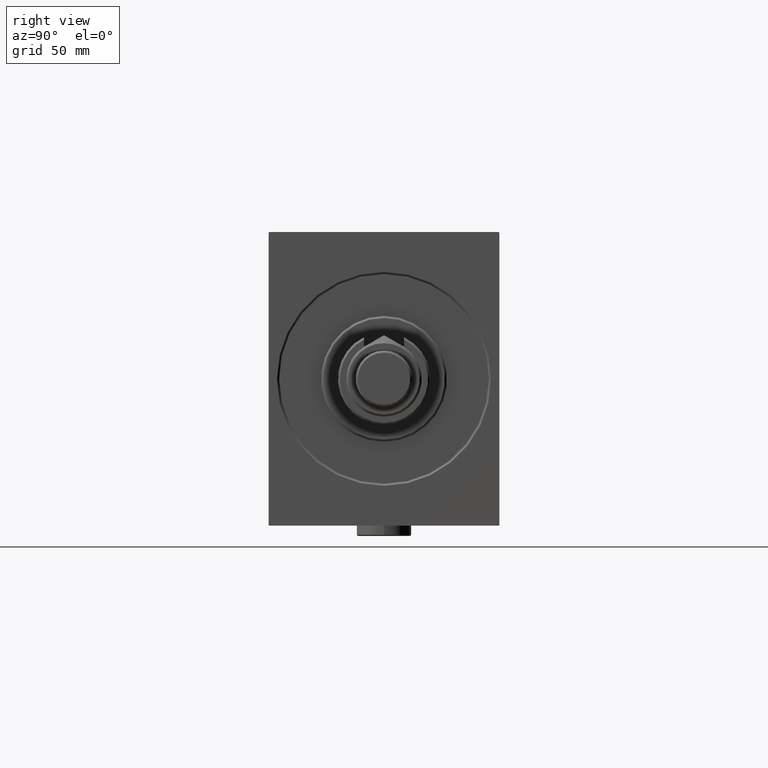
[diagram: clean part render]
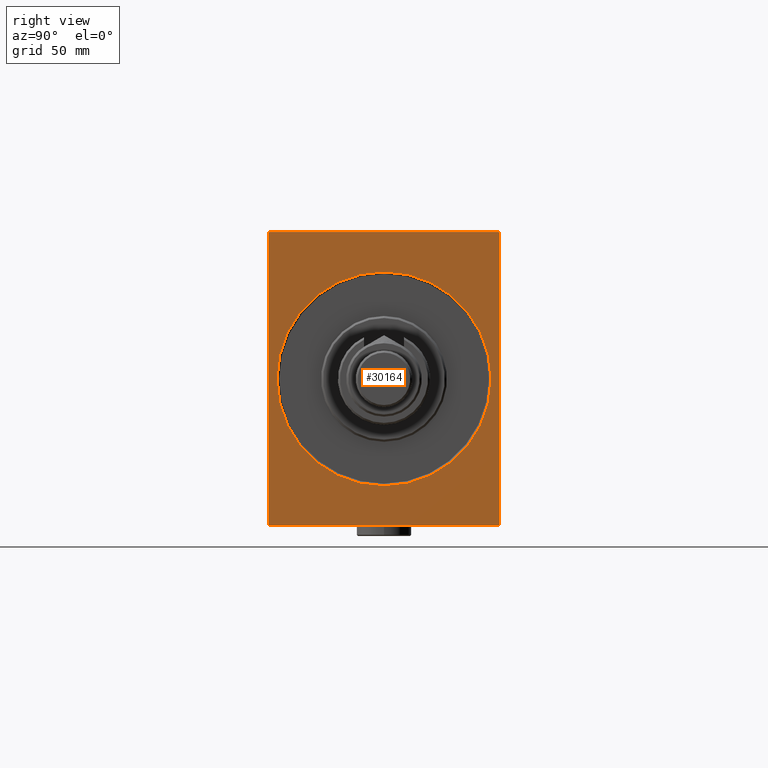
[diagram: same view with one face highlighted and labeled with its STEP entity id]
A machine part, right view. The second image highlights one B-rep face of the part: STEP entity #30164.
In plain terms, the highlighted planar face has unit normal (-1, 0, 0).
Its self-contained STEP definition (entity closure, byte-faithful):
#284 = CARTESIAN_POINT ( 'NONE',  ( 0.000000000000000000, 54.99999999999999289, 69.69999999999997442 ) ) ;
#1141 = CARTESIAN_POINT ( 'NONE',  ( 0.000000000000000000, 54.69999999999999574, -70.00000000000001421 ) ) ;
#1322 = LINE ( 'NONE', #5139, #26575 ) ;
#3632 = DIRECTION ( 'NONE',  ( 1.000000000000000000, 0.000000000000000000, 0.000000000000000000 ) ) ;
#3870 = DIRECTION ( 'NONE',  ( 0.000000000000000000, 0.000000000000000000, -1.000000000000000000 ) ) ;
#4311 = CARTESIAN_POINT ( 'NONE',  ( 0.000000000000000000, 55.00000000000002132, -69.70000000000000284 ) ) ;
#4884 = LINE ( 'NONE', #7769, #10941 ) ;
#5139 = CARTESIAN_POINT ( 'NONE',  ( 0.000000000000000000, 54.69999999999997442, 70.00000000000000000 ) ) ;
#5729 = ORIENTED_EDGE ( 'NONE', *, *, #18793, .T. ) ;
#5784 = LINE ( 'NONE', #45694, #27274 ) ;
#5862 = DIRECTION ( 'NONE',  ( 0.000000000000000000, 0.000000000000000000, -1.000000000000000000 ) ) ;
#6263 = VERTEX_POINT ( 'NONE', #40814 ) ;
#6533 = ORIENTED_EDGE ( 'NONE', *, *, #34317, .T. ) ;
#6877 = VECTOR ( 'NONE', #18636, 1000.000000000000000 ) ;
#7229 = FACE_BOUND ( 'NONE', #19592, .T. ) ;
#7561 = VECTOR ( 'NONE', #17373, 1000.000000000000114 ) ;
#7769 = CARTESIAN_POINT ( 'NONE',  ( 0.000000000000000000, -54.99999999999999289, -70.00000000000001421 ) ) ;
#8132 = CARTESIAN_POINT ( 'NONE',  ( 0.000000000000000000, 55.00000000000002132, -69.70000000000000284 ) ) ;
#8489 = DIRECTION ( 'NONE',  ( -0.000000000000000000, 0.7071067811865312525, -0.7071067811865638930 ) ) ;
#8573 = LINE ( 'NONE', #34146, #6877 ) ;
#9638 = CARTESIAN_POINT ( 'NONE',  ( 0.000000000000000000, 54.99999999999999289, 70.00000000000000000 ) ) ;
#10392 = EDGE_CURVE ( 'NONE', #20041, #24339, #20962, .T. ) ;
#10795 = CIRCLE ( 'NONE', #38266, 50.99999999999993605 ) ;
#10941 = VECTOR ( 'NONE', #15409, 1000.000000000000000 ) ;
#13411 = CARTESIAN_POINT ( 'NONE',  ( 0.000000000000000000, -54.99999999999999289, 69.70000000000000284 ) ) ;
#13824 = AXIS2_PLACEMENT_3D ( 'NONE', #17806, #35511, #5862 ) ;
#14356 = AXIS2_PLACEMENT_3D ( 'NONE', #36169, #14404, #28985 ) ;
#14404 = DIRECTION ( 'NONE',  ( 1.000000000000000000, 0.000000000000000000, 0.000000000000000000 ) ) ;
#15338 = CIRCLE ( 'NONE', #13824, 50.99999999999993605 ) ;
#15409 = DIRECTION ( 'NONE',  ( 0.000000000000000000, 1.000000000000000000, 0.000000000000000000 ) ) ;
#15851 = EDGE_CURVE ( 'NONE', #21155, #35886, #18202, .T. ) ;
#16773 = VECTOR ( 'NONE', #29432, 1000.000000000000114 ) ;
#17055 = LINE ( 'NONE', #9638, #38337 ) ;
#17373 = DIRECTION ( 'NONE',  ( -0.000000000000000000, 0.7071067811865474617, 0.7071067811865474617 ) ) ;
#17806 = CARTESIAN_POINT ( 'NONE',  ( 0.000000000000000000, 0.000000000000000000, 0.000000000000000000 ) ) ;
#17882 = ORIENTED_EDGE ( 'NONE', *, *, #30180, .T. ) ;
#17983 = DIRECTION ( 'NONE',  ( 0.000000000000000000, -1.000000000000000000, -1.261617073437677999E-16 ) ) ;
#18202 = LINE ( 'NONE', #8132, #16773 ) ;
#18636 = DIRECTION ( 'NONE',  ( 0.000000000000000000, -1.982541115402065110E-16, 1.000000000000000000 ) ) ;
#18793 = EDGE_CURVE ( 'NONE', #38817, #47187, #15338, .T. ) ;
#19046 = CARTESIAN_POINT ( 'NONE',  ( 0.000000000000000000, -54.69999999999997442, -70.00000000000001421 ) ) ;
#19592 = EDGE_LOOP ( 'NONE', ( #5729, #45536 ) ) ;
#20041 = VERTEX_POINT ( 'NONE', #13411 ) ;
#20283 = CARTESIAN_POINT ( 'NONE',  ( 0.000000000000000000, -54.69999999999999574, 69.99999999999998579 ) ) ;
#20962 = LINE ( 'NONE', #42252, #7561 ) ;
#21155 = VERTEX_POINT ( 'NONE', #4311 ) ;
#21807 = LINE ( 'NONE', #44023, #23486 ) ;
#22042 = FACE_OUTER_BOUND ( 'NONE', #26616, .T. ) ;
#23486 = VECTOR ( 'NONE', #36392, 1000.000000000000114 ) ;
#24339 = VERTEX_POINT ( 'NONE', #20283 ) ;
#24542 = ORIENTED_EDGE ( 'NONE', *, *, #15851, .T. ) ;
#24660 = VERTEX_POINT ( 'NONE', #19046 ) ;
#24892 = EDGE_CURVE ( 'NONE', #24660, #35886, #4884, .T. ) ;
#26212 = CARTESIAN_POINT ( 'NONE',  ( 0.000000000000000000, 0.000000000000000000, 50.99999999999993605 ) ) ;
#26575 = VECTOR ( 'NONE', #8489, 1000.000000000000114 ) ;
#26616 = EDGE_LOOP ( 'NONE', ( #28354, #6533, #34801, #24542, #41926, #17882, #27140, #39264 ) ) ;
#27140 = ORIENTED_EDGE ( 'NONE', *, *, #28187, .F. ) ;
#27274 = VECTOR ( 'NONE', #34231, 1000.000000000000000 ) ;
#28187 = EDGE_CURVE ( 'NONE', #20041, #6263, #5784, .T. ) ;
#28354 = ORIENTED_EDGE ( 'NONE', *, *, #44514, .F. ) ;
#28985 = DIRECTION ( 'NONE',  ( 0.000000000000000000, 0.000000000000000000, -1.000000000000000000 ) ) ;
#29432 = DIRECTION ( 'NONE',  ( 0.000000000000000000, -0.7071067811865474617, -0.7071067811865474617 ) ) ;
#30164 = ADVANCED_FACE ( 'NONE', ( #7229, #22042 ), #36867, .F. ) ;
#30180 = EDGE_CURVE ( 'NONE', #24660, #6263, #21807, .T. ) ;
#32459 = CARTESIAN_POINT ( 'NONE',  ( 0.000000000000000000, 6.245698675651492556E-15, -50.99999999999993605 ) ) ;
#34146 = CARTESIAN_POINT ( 'NONE',  ( 0.000000000000000000, 55.00000000000002132, -70.00000000000001421 ) ) ;
#34231 = DIRECTION ( 'NONE',  ( 0.000000000000000000, 0.000000000000000000, -1.000000000000000000 ) ) ;
#34317 = EDGE_CURVE ( 'NONE', #38577, #43770, #1322, .T. ) ;
#34801 = ORIENTED_EDGE ( 'NONE', *, *, #38620, .F. ) ;
#35511 = DIRECTION ( 'NONE',  ( 1.000000000000000000, 0.000000000000000000, 0.000000000000000000 ) ) ;
#35886 = VERTEX_POINT ( 'NONE', #1141 ) ;
#36169 = CARTESIAN_POINT ( 'NONE',  ( 0.000000000000000000, 0.000000000000000000, 0.000000000000000000 ) ) ;
#36392 = DIRECTION ( 'NONE',  ( -0.000000000000000000, -0.7071067811865474617, 0.7071067811865474617 ) ) ;
#36867 = PLANE ( 'NONE',  #14356 ) ;
#37069 = CARTESIAN_POINT ( 'NONE',  ( 0.000000000000000000, 0.000000000000000000, 0.000000000000000000 ) ) ;
#38266 = AXIS2_PLACEMENT_3D ( 'NONE', #37069, #3632, #3870 ) ;
#38337 = VECTOR ( 'NONE', #17983, 1000.000000000000000 ) ;
#38577 = VERTEX_POINT ( 'NONE', #44195 ) ;
#38620 = EDGE_CURVE ( 'NONE', #21155, #43770, #8573, .T. ) ;
#38817 = VERTEX_POINT ( 'NONE', #26212 ) ;
#39264 = ORIENTED_EDGE ( 'NONE', *, *, #10392, .T. ) ;
#40814 = CARTESIAN_POINT ( 'NONE',  ( 0.000000000000000000, -54.99999999999999289, -69.70000000000000284 ) ) ;
#41926 = ORIENTED_EDGE ( 'NONE', *, *, #24892, .F. ) ;
#42252 = CARTESIAN_POINT ( 'NONE',  ( 0.000000000000000000, -54.99999999999999289, 69.70000000000000284 ) ) ;
#43770 = VERTEX_POINT ( 'NONE', #284 ) ;
#44023 = CARTESIAN_POINT ( 'NONE',  ( 0.000000000000000000, -54.69999999999997442, -70.00000000000001421 ) ) ;
#44195 = CARTESIAN_POINT ( 'NONE',  ( 0.000000000000000000, 54.69999999999997442, 70.00000000000000000 ) ) ;
#44514 = EDGE_CURVE ( 'NONE', #38577, #24339, #17055, .T. ) ;
#45536 = ORIENTED_EDGE ( 'NONE', *, *, #45759, .T. ) ;
#45694 = CARTESIAN_POINT ( 'NONE',  ( 0.000000000000000000, -54.99999999999999289, 69.99999999999998579 ) ) ;
#45759 = EDGE_CURVE ( 'NONE', #47187, #38817, #10795, .T. ) ;
#47187 = VERTEX_POINT ( 'NONE', #32459 ) ;